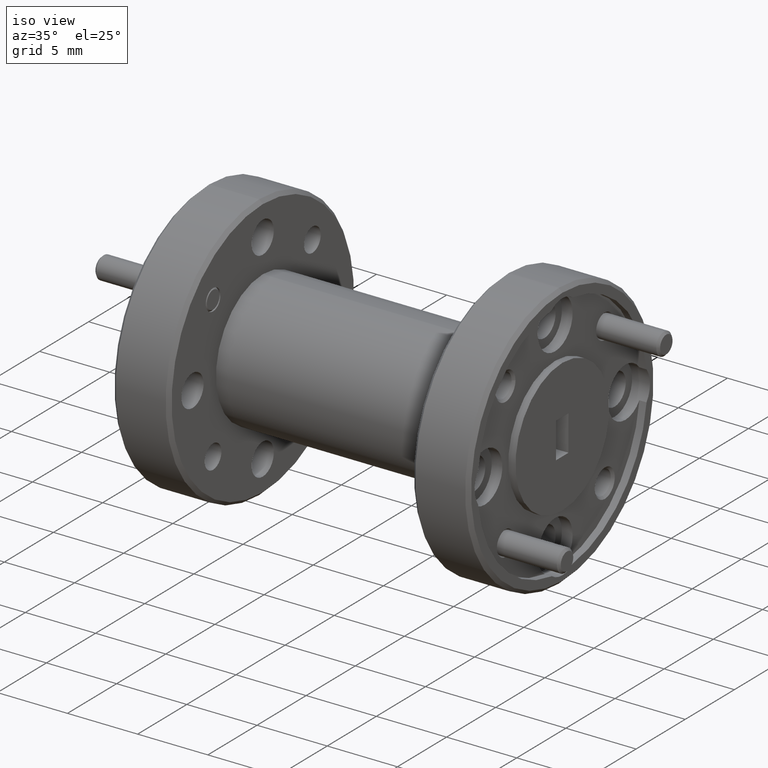
[diagram: clean part render]
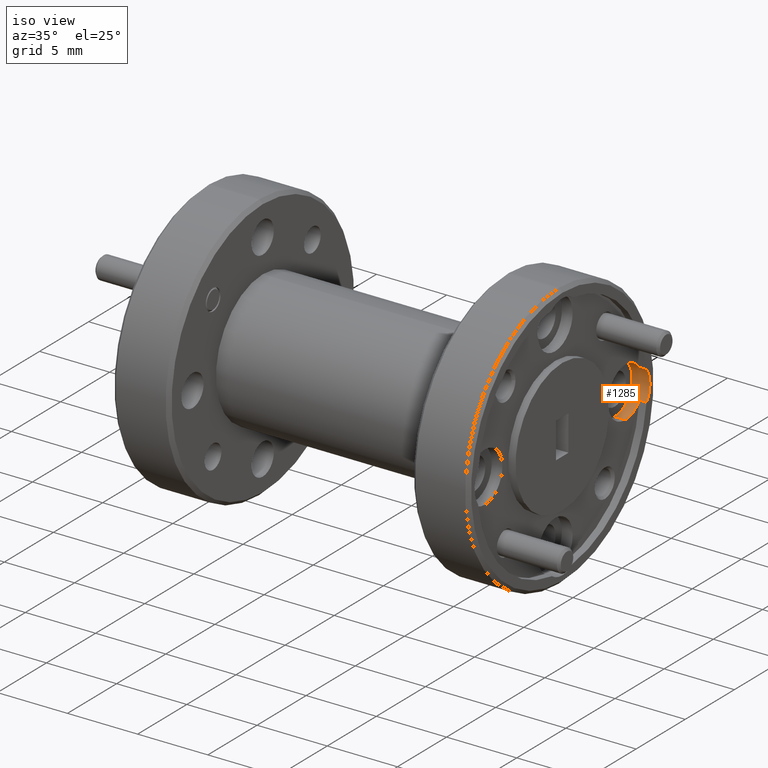
[diagram: same view with one face highlighted and labeled with its STEP entity id]
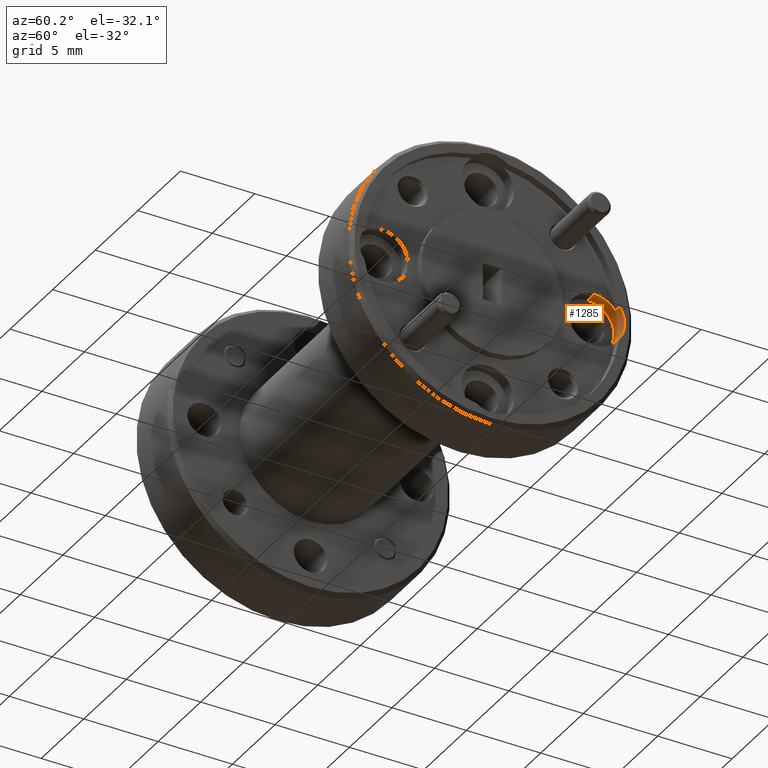
[diagram: same view with one face highlighted and labeled with its STEP entity id]
A machine part, iso view. The second image highlights one B-rep face of the part: STEP entity #1285.
A second angle (auxiliary view) of the same face is appended — the face is thin or edge-on in the first view.
In plain terms, the highlighted cylindrical surface (edge-blend (fillet) strip) has radius 1.778 mm, axis along (1, 0, 0).
Its self-contained STEP definition (entity closure, byte-faithful):
#22 = VECTOR ( 'NONE', #3255, 39.37007874015748100 ) ;
#65 = DIRECTION ( 'NONE',  ( 0.0000000000000000000, 0.0000000000000000000, -1.000000000000000000 ) ) ;
#81 = DIRECTION ( 'NONE',  ( -1.000000000000000000, -0.0000000000000000000, -0.0000000000000000000 ) ) ;
#95 = CARTESIAN_POINT ( 'NONE',  ( -2.194678697788352100, 1.124110936271251800, 0.9292480561998594000 ) ) ;
#109 = AXIS2_PLACEMENT_3D ( 'NONE', #2583, #576, #589 ) ;
#122 = ORIENTED_EDGE ( 'NONE', *, *, #3552, .F. ) ;
#146 = CARTESIAN_POINT ( 'NONE',  ( -2.214678697788351700, 1.067935936271251700, 0.8174824079348077500 ) ) ;
#156 = CARTESIAN_POINT ( 'NONE',  ( -2.244678697788351900, 1.067935936271251700, 0.9574824079348078800 ) ) ;
#229 = ORIENTED_EDGE ( 'NONE', *, *, #1807, .T. ) ;
#407 = DIRECTION ( 'NONE',  ( 0.0000000000000000000, 0.0000000000000000000, -1.000000000000000000 ) ) ;
#464 = CARTESIAN_POINT ( 'NONE',  ( -2.214678697788351700, 1.124110936271251800, 0.9292480561998594000 ) ) ;
#465 = DIRECTION ( 'NONE',  ( 1.000000000000000000, 0.0000000000000000000, 0.0000000000000000000 ) ) ;
#474 = EDGE_CURVE ( 'NONE', #4249, #2001, #3370, .T. ) ;
#519 = CARTESIAN_POINT ( 'NONE',  ( -2.214678697788351700, 1.124110936271251800, 0.8457167596697562400 ) ) ;
#558 = CARTESIAN_POINT ( 'NONE',  ( -2.244678697788351900, 1.067935936271251700, 0.8174824079348077500 ) ) ;
#576 = DIRECTION ( 'NONE',  ( 1.000000000000000000, 0.0000000000000000000, 0.0000000000000000000 ) ) ;
#589 = DIRECTION ( 'NONE',  ( 0.0000000000000000000, 0.0000000000000000000, -1.000000000000000000 ) ) ;
#621 = CARTESIAN_POINT ( 'NONE',  ( -2.214678697788351700, 1.067935936271251700, 0.8874824079348078200 ) ) ;
#715 = LINE ( 'NONE', #1519, #1808 ) ;
#759 = AXIS2_PLACEMENT_3D ( 'NONE', #621, #3620, #1945 ) ;
#918 = VERTEX_POINT ( 'NONE', #464 ) ;
#990 = CIRCLE ( 'NONE', #759, 0.07000000000000007600 ) ;
#1117 = CARTESIAN_POINT ( 'NONE',  ( -2.244678697788351900, 1.067935936271251700, 0.8874824079348078200 ) ) ;
#1285 = ADVANCED_FACE ( 'NONE', ( #3708 ), #2890, .F. ) ;
#1305 = CARTESIAN_POINT ( 'NONE',  ( -2.194678697788352100, 1.067935936271251700, 0.8874824079348078200 ) ) ;
#1344 = VERTEX_POINT ( 'NONE', #146 ) ;
#1424 = CARTESIAN_POINT ( 'NONE',  ( -2.194678697788352100, 1.124110936271251800, 0.8457167596697562400 ) ) ;
#1492 = LINE ( 'NONE', #558, #22 ) ;
#1511 = EDGE_CURVE ( 'NONE', #4249, #1344, #1492, .T. ) ;
#1519 = CARTESIAN_POINT ( 'NONE',  ( -2.694678697788351700, 1.124110936271251800, 0.9292480561998594000 ) ) ;
#1616 = VECTOR ( 'NONE', #465, 39.37007874015748100 ) ;
#1782 = DIRECTION ( 'NONE',  ( 1.000000000000000000, 0.0000000000000000000, 0.0000000000000000000 ) ) ;
#1807 = EDGE_CURVE ( 'NONE', #3391, #2671, #3922, .T. ) ;
#1808 = VECTOR ( 'NONE', #1858, 39.37007874015748100 ) ;
#1838 = CARTESIAN_POINT ( 'NONE',  ( -2.244678697788351900, 1.067935936271251700, 0.8174824079348077500 ) ) ;
#1858 = DIRECTION ( 'NONE',  ( -1.000000000000000000, -0.0000000000000000000, -0.0000000000000000000 ) ) ;
#1945 = DIRECTION ( 'NONE',  ( 0.0000000000000000000, -1.951319995474471800E-015, -1.000000000000000000 ) ) ;
#2001 = VERTEX_POINT ( 'NONE', #4009 ) ;
#2052 = EDGE_CURVE ( 'NONE', #3391, #1344, #2058, .T. ) ;
#2058 = CIRCLE ( 'NONE', #3484, 0.07000000000000007600 ) ;
#2148 = VERTEX_POINT ( 'NONE', #95 ) ;
#2231 = EDGE_LOOP ( 'NONE', ( #3075, #2574, #3330, #3131, #229, #122, #2767, #3402 ) ) ;
#2445 = CARTESIAN_POINT ( 'NONE',  ( -2.214678697788351700, 1.067935936271251700, 0.8874824079348078200 ) ) ;
#2574 = ORIENTED_EDGE ( 'NONE', *, *, #474, .F. ) ;
#2583 = CARTESIAN_POINT ( 'NONE',  ( -2.244678697788351900, 1.067935936271251700, 0.8874824079348078200 ) ) ;
#2615 = CARTESIAN_POINT ( 'NONE',  ( -2.214678697788351700, 1.067935936271251700, 0.9574824079348078800 ) ) ;
#2641 = DIRECTION ( 'NONE',  ( 1.000000000000000000, 0.0000000000000000000, 0.0000000000000000000 ) ) ;
#2671 = VERTEX_POINT ( 'NONE', #1424 ) ;
#2767 = ORIENTED_EDGE ( 'NONE', *, *, #3359, .T. ) ;
#2890 = CYLINDRICAL_SURFACE ( 'NONE', #2941, 0.07000000000000007600 ) ;
#2941 = AXIS2_PLACEMENT_3D ( 'NONE', #1117, #1782, #407 ) ;
#2966 = DIRECTION ( 'NONE',  ( -1.000000000000000000, -0.0000000000000000000, -0.0000000000000000000 ) ) ;
#3075 = ORIENTED_EDGE ( 'NONE', *, *, #3367, .F. ) ;
#3131 = ORIENTED_EDGE ( 'NONE', *, *, #2052, .F. ) ;
#3255 = DIRECTION ( 'NONE',  ( 1.000000000000000000, 0.0000000000000000000, 0.0000000000000000000 ) ) ;
#3270 = LINE ( 'NONE', #156, #1616 ) ;
#3330 = ORIENTED_EDGE ( 'NONE', *, *, #1511, .T. ) ;
#3359 = EDGE_CURVE ( 'NONE', #2148, #918, #715, .T. ) ;
#3367 = EDGE_CURVE ( 'NONE', #2001, #3918, #3270, .T. ) ;
#3370 = CIRCLE ( 'NONE', #109, 0.07000000000000007600 ) ;
#3391 = VERTEX_POINT ( 'NONE', #519 ) ;
#3402 = ORIENTED_EDGE ( 'NONE', *, *, #3571, .F. ) ;
#3484 = AXIS2_PLACEMENT_3D ( 'NONE', #2445, #81, #65 ) ;
#3552 = EDGE_CURVE ( 'NONE', #2148, #2671, #3957, .T. ) ;
#3571 = EDGE_CURVE ( 'NONE', #3918, #918, #990, .T. ) ;
#3572 = CARTESIAN_POINT ( 'NONE',  ( -2.694678697788351700, 1.124110936271251800, 0.8457167596697562400 ) ) ;
#3620 = DIRECTION ( 'NONE',  ( -1.000000000000000000, -0.0000000000000000000, -0.0000000000000000000 ) ) ;
#3702 = AXIS2_PLACEMENT_3D ( 'NONE', #1305, #2966, #3933 ) ;
#3708 = FACE_OUTER_BOUND ( 'NONE', #2231, .T. ) ;
#3918 = VERTEX_POINT ( 'NONE', #2615 ) ;
#3922 = LINE ( 'NONE', #3572, #4236 ) ;
#3933 = DIRECTION ( 'NONE',  ( 0.0000000000000000000, 1.951319995474471800E-015, -1.000000000000000000 ) ) ;
#3957 = CIRCLE ( 'NONE', #3702, 0.07000000000000007600 ) ;
#4009 = CARTESIAN_POINT ( 'NONE',  ( -2.244678697788351900, 1.067935936271251700, 0.9574824079348078800 ) ) ;
#4236 = VECTOR ( 'NONE', #2641, 39.37007874015748100 ) ;
#4249 = VERTEX_POINT ( 'NONE', #1838 ) ;